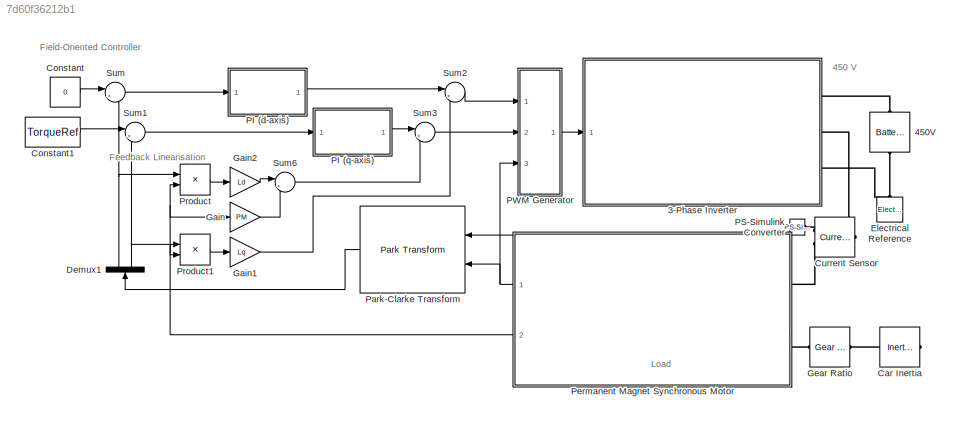
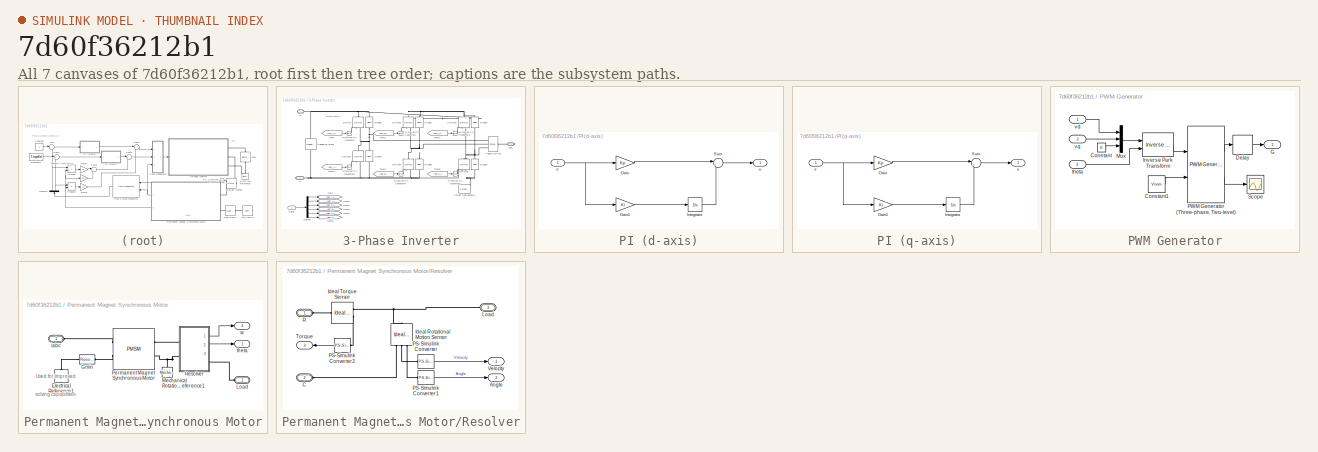
[diagram: thumbnail index - all 7 canvases of the model, root first then tree order]
MODEL slx_7d60f36212b1
KIND model
CONFIG AbsTol = auto
CONFIG EnableMultiTasking = off
CONFIG FixedStep = auto
CONFIG MaxStep = auto
CONFIG MinStep = auto
CONFIG RelTol = 1e-3
CONFIG SampleTimeConstraint = Unconstrained
CONFIG Solver = VariableStepAuto
CONFIG SolverName = VariableStepAuto
CONFIG StartTime = 0.0
CONFIG StopTime = 10.0
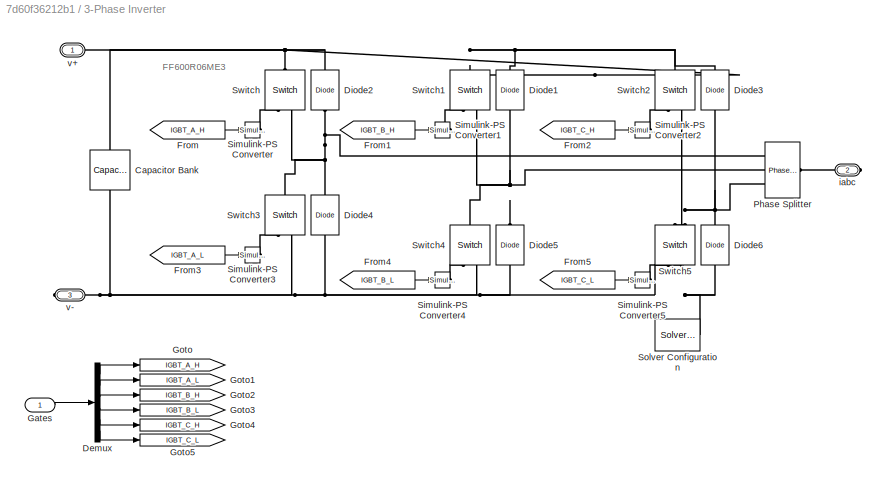
BLOCK [SubSystem] 3-Phase Inverter
  Ports = [1, 0, 0, 0, 0, 0, 3]
  RequestExecContextInheritance = off
BLOCK [Reference] 3-Phase Inverter/Capacitor Bank  REF=fl_lib/Electrical/Electrical Elements/Capacitor
  Ports = [0, 0, 0, 0, 0, 1, 1]
  SourceBlock = fl_lib/Electrical/Electrical Elements/Capacitor
  SourceProductBaseCode = SS
  SourceProductName = Simscape
  SourceType = Capacitor
BLOCK [Demux] 3-Phase Inverter/Demux
  DisplayOption = bar
  Outputs = 6
  Ports = [1, 6]
BLOCK [Reference] 3-Phase Inverter/Diode1  REF=fl_lib/Electrical/Electrical Elements/Diode
  Ports = [0, 0, 0, 0, 0, 1, 1]
  SourceBlock = fl_lib/Electrical/Electrical Elements/Diode
  SourceProductBaseCode = SS
  SourceProductName = Simscape
  SourceType = Diode
BLOCK [Reference] 3-Phase Inverter/Diode2  REF=fl_lib/Electrical/Electrical Elements/Diode
  Ports = [0, 0, 0, 0, 0, 1, 1]
  SourceBlock = fl_lib/Electrical/Electrical Elements/Diode
  SourceProductBaseCode = SS
  SourceProductName = Simscape
  SourceType = Diode
BLOCK [Reference] 3-Phase Inverter/Diode3  REF=fl_lib/Electrical/Electrical Elements/Diode
  Ports = [0, 0, 0, 0, 0, 1, 1]
  SourceBlock = fl_lib/Electrical/Electrical Elements/Diode
  SourceProductBaseCode = SS
  SourceProductName = Simscape
  SourceType = Diode
BLOCK [Reference] 3-Phase Inverter/Diode4  REF=fl_lib/Electrical/Electrical Elements/Diode
  Ports = [0, 0, 0, 0, 0, 1, 1]
  SourceBlock = fl_lib/Electrical/Electrical Elements/Diode
  SourceProductBaseCode = SS
  SourceProductName = Simscape
  SourceType = Diode
BLOCK [Reference] 3-Phase Inverter/Diode5  REF=fl_lib/Electrical/Electrical Elements/Diode
  Ports = [0, 0, 0, 0, 0, 1, 1]
  SourceBlock = fl_lib/Electrical/Electrical Elements/Diode
  SourceProductBaseCode = SS
  SourceProductName = Simscape
  SourceType = Diode
BLOCK [Reference] 3-Phase Inverter/Diode6  REF=fl_lib/Electrical/Electrical Elements/Diode
  Ports = [0, 0, 0, 0, 0, 1, 1]
  SourceBlock = fl_lib/Electrical/Electrical Elements/Diode
  SourceProductBaseCode = SS
  SourceProductName = Simscape
  SourceType = Diode
BLOCK [From] 3-Phase Inverter/From
  GotoTag = IGBT_A_H
BLOCK [From] 3-Phase Inverter/From1
  GotoTag = IGBT_B_H
BLOCK [From] 3-Phase Inverter/From2
  GotoTag = IGBT_C_H
BLOCK [From] 3-Phase Inverter/From3
  GotoTag = IGBT_A_L
BLOCK [From] 3-Phase Inverter/From4
  GotoTag = IGBT_B_L
BLOCK [From] 3-Phase Inverter/From5
  GotoTag = IGBT_C_L
BLOCK [Inport] 3-Phase Inverter/Gates
  IconDisplay = Port number
BLOCK [Goto] 3-Phase Inverter/Goto
  GotoTag = IGBT_A_H
BLOCK [Goto] 3-Phase Inverter/Goto1
  GotoTag = IGBT_A_L
BLOCK [Goto] 3-Phase Inverter/Goto2
  GotoTag = IGBT_B_H
BLOCK [Goto] 3-Phase Inverter/Goto3
  GotoTag = IGBT_B_L
BLOCK [Goto] 3-Phase Inverter/Goto4
  GotoTag = IGBT_C_H
BLOCK [Goto] 3-Phase Inverter/Goto5
  GotoTag = IGBT_C_L
BLOCK [Reference] 3-Phase Inverter/Phase Splitter  REF=ee_lib/Connectors &
References/Phase Splitter
  Ports = [0, 0, 0, 0, 0, 1, 3]
  SourceBlock = ee_lib/Connectors &\nReferences/Phase Splitter
  SourceProductBaseCode = PS
  SourceProductName = Simscape Electrical
  SourceType = Phase Splitter
BLOCK [Reference] 3-Phase Inverter/Simulink-PS Converter  REF=nesl_utility/Simulink-PS
Converter
  Ports = [1, 0, 0, 0, 0, 0, 1]
  SourceBlock = nesl_utility/Simulink-PS\nConverter
  SourceProductBaseCode = SS
  SourceProductName = Simscape
  SourceType = Simulink-PS\nConverter
BLOCK [Reference] 3-Phase Inverter/Simulink-PS Converter1  REF=nesl_utility/Simulink-PS
Converter
  Ports = [1, 0, 0, 0, 0, 0, 1]
  SourceBlock = nesl_utility/Simulink-PS\nConverter
  SourceProductBaseCode = SS
  SourceProductName = Simscape
  SourceType = Simulink-PS\nConverter
BLOCK [Reference] 3-Phase Inverter/Simulink-PS Converter2  REF=nesl_utility/Simulink-PS
Converter
  Ports = [1, 0, 0, 0, 0, 0, 1]
  SourceBlock = nesl_utility/Simulink-PS\nConverter
  SourceProductBaseCode = SS
  SourceProductName = Simscape
  SourceType = Simulink-PS\nConverter
BLOCK [Reference] 3-Phase Inverter/Simulink-PS Converter3  REF=nesl_utility/Simulink-PS
Converter
  Ports = [1, 0, 0, 0, 0, 0, 1]
  SourceBlock = nesl_utility/Simulink-PS\nConverter
  SourceProductBaseCode = SS
  SourceProductName = Simscape
  SourceType = Simulink-PS\nConverter
BLOCK [Reference] 3-Phase Inverter/Simulink-PS Converter4  REF=nesl_utility/Simulink-PS
Converter
  Ports = [1, 0, 0, 0, 0, 0, 1]
  SourceBlock = nesl_utility/Simulink-PS\nConverter
  SourceProductBaseCode = SS
  SourceProductName = Simscape
  SourceType = Simulink-PS\nConverter
BLOCK [Reference] 3-Phase Inverter/Simulink-PS Converter5  REF=nesl_utility/Simulink-PS
Converter
  Ports = [1, 0, 0, 0, 0, 0, 1]
  SourceBlock = nesl_utility/Simulink-PS\nConverter
  SourceProductBaseCode = SS
  SourceProductName = Simscape
  SourceType = Simulink-PS\nConverter
BLOCK [Reference] 3-Phase Inverter/Solver Configuration  REF=nesl_utility/Solver
Configuration
  Ports = [0, 0, 0, 0, 0, 0, 1]
  SourceBlock = nesl_utility/Solver\nConfiguration
  SourceProductBaseCode = SS
  SourceProductName = Simscape
  SourceType = Solver\nConfiguration
BLOCK [Reference] 3-Phase Inverter/Switch  REF=fl_lib/Electrical/Electrical Elements/Switch
  Ports = [0, 0, 0, 0, 0, 1, 2]
  SourceBlock = fl_lib/Electrical/Electrical Elements/Switch
  SourceProductBaseCode = SS
  SourceProductName = Simscape
  SourceType = Switch
BLOCK [Reference] 3-Phase Inverter/Switch1  REF=fl_lib/Electrical/Electrical Elements/Switch
  Ports = [0, 0, 0, 0, 0, 1, 2]
  SourceBlock = fl_lib/Electrical/Electrical Elements/Switch
  SourceProductBaseCode = SS
  SourceProductName = Simscape
  SourceType = Switch
BLOCK [Reference] 3-Phase Inverter/Switch2  REF=fl_lib/Electrical/Electrical Elements/Switch
  Ports = [0, 0, 0, 0, 0, 1, 2]
  SourceBlock = fl_lib/Electrical/Electrical Elements/Switch
  SourceProductBaseCode = SS
  SourceProductName = Simscape
  SourceType = Switch
BLOCK [Reference] 3-Phase Inverter/Switch3  REF=fl_lib/Electrical/Electrical Elements/Switch
  Ports = [0, 0, 0, 0, 0, 1, 2]
  SourceBlock = fl_lib/Electrical/Electrical Elements/Switch
  SourceProductBaseCode = SS
  SourceProductName = Simscape
  SourceType = Switch
BLOCK [Reference] 3-Phase Inverter/Switch4  REF=fl_lib/Electrical/Electrical Elements/Switch
  Ports = [0, 0, 0, 0, 0, 1, 2]
  SourceBlock = fl_lib/Electrical/Electrical Elements/Switch
  SourceProductBaseCode = SS
  SourceProductName = Simscape
  SourceType = Switch
BLOCK [Reference] 3-Phase Inverter/Switch5  REF=fl_lib/Electrical/Electrical Elements/Switch
  Ports = [0, 0, 0, 0, 0, 1, 2]
  SourceBlock = fl_lib/Electrical/Electrical Elements/Switch
  SourceProductBaseCode = SS
  SourceProductName = Simscape
  SourceType = Switch
BLOCK [PMIOPort] 3-Phase Inverter/iabc
  Port = 2
  Side = Right
  Tag = PMCPort
BLOCK [PMIOPort] 3-Phase Inverter/v+
  Side = Right
  Tag = PMCPort
BLOCK [PMIOPort] 3-Phase Inverter/v-
  Port = 3
  Side = Right
  Tag = PMCPort
BLOCK [Reference] 450V  REF=ee_lib/Sources/Battery
  Ports = [0, 0, 0, 0, 0, 1, 1]
  SourceBlock = ee_lib/Sources/Battery
  SourceProductBaseCode = PS
  SourceProductName = Simscape Electrical
  SourceType = Battery
BLOCK [Reference] Car Inertia  REF=fl_lib/Mechanical/Rotational Elements/Inertia
  Ports = [0, 0, 0, 0, 0, 1]
  SourceBlock = fl_lib/Mechanical/Rotational Elements/Inertia
  SourceProductBaseCode = SS
  SourceProductName = Simscape
  SourceType = Inertia
BLOCK [Constant] Constant
  Value = 0
BLOCK [Constant] Constant1
  Value = TorqueRef
BLOCK [Reference] Current Sensor  REF=ee_lib/Sensors &
Transducers/Current Sensor
(Three-Phase)
  Ports = [0, 0, 0, 0, 0, 1, 2]
  SourceBlock = ee_lib/Sensors &\nTransducers/Current Sensor\n(Three-Phase)
  SourceProductBaseCode = PS
  SourceProductName = Simscape Electrical
  SourceType = Current Sensor\n(Three-Phase)
BLOCK [Demux] Demux1
  DisplayOption = bar
  Outputs = 2
  Ports = [1, 2]
BLOCK [Reference] Electrical Reference  REF=fl_lib/Electrical/Electrical Elements/Electrical Reference
  Ports = [0, 0, 0, 0, 0, 1]
  SourceBlock = fl_lib/Electrical/Electrical Elements/Electrical Reference
  SourceProductName = Foundation Library
  SourceType = Electrical Reference
BLOCK [Gain] Gain
  Gain = PM
  OutDataTypeStr = Inherit: Inherit via internal rule
  ParamDataTypeStr = Inherit: Inherit via internal rule
  SaturateOnIntegerOverflow = off
BLOCK [Gain] Gain1
  Gain = Lq
  OutDataTypeStr = Inherit: Inherit via internal rule
  ParamDataTypeStr = Inherit: Inherit via internal rule
  SaturateOnIntegerOverflow = off
BLOCK [Gain] Gain2
  Gain = Ld
  OutDataTypeStr = Inherit: Inherit via internal rule
  ParamDataTypeStr = Inherit: Inherit via internal rule
  SaturateOnIntegerOverflow = off
BLOCK [Reference] Gear Ratio  REF=fl_lib/Mechanical/Mechanisms/Gear Box
  Ports = [0, 0, 0, 0, 0, 1, 1]
  SourceBlock = fl_lib/Mechanical/Mechanisms/Gear Box
  SourceProductBaseCode = SS
  SourceProductName = Simscape
  SourceType = Gear Box
BLOCK [SubSystem] PI (d-axis)
  Ports = [1, 1]
  RequestExecContextInheritance = off
BLOCK [Gain] PI (d-axis)/Gain
  Gain = Kp
  OutDataTypeStr = Inherit: Inherit via internal rule
  ParamDataTypeStr = Inherit: Inherit via internal rule
  SaturateOnIntegerOverflow = off
BLOCK [Gain] PI (d-axis)/Gain1
  Gain = Ki
  OutDataTypeStr = Inherit: Inherit via internal rule
  ParamDataTypeStr = Inherit: Inherit via internal rule
  SaturateOnIntegerOverflow = off
BLOCK [Integrator] PI (d-axis)/Integrator
  Ports = [1, 1]
BLOCK [Sum] PI (d-axis)/Sum
  IconShape = round
  InputSameDT = off
  Inputs = |++
  OutDataTypeStr = Inherit: Inherit via internal rule
  Ports = [2, 1]
  SaturateOnIntegerOverflow = off
BLOCK [Inport] PI (d-axis)/e
  IconDisplay = Port number
  SampleTime = Ts
BLOCK [Outport] PI (d-axis)/u
  IconDisplay = Port number
BLOCK [SubSystem] PI (q-axis)
  Ports = [1, 1]
  RequestExecContextInheritance = off
BLOCK [Gain] PI (q-axis)/Gain
  Gain = Kp
  OutDataTypeStr = Inherit: Inherit via internal rule
  ParamDataTypeStr = Inherit: Inherit via internal rule
  SaturateOnIntegerOverflow = off
BLOCK [Gain] PI (q-axis)/Gain1
  Gain = Ki
  OutDataTypeStr = Inherit: Inherit via internal rule
  ParamDataTypeStr = Inherit: Inherit via internal rule
  SaturateOnIntegerOverflow = off
BLOCK [Integrator] PI (q-axis)/Integrator
  Ports = [1, 1]
BLOCK [Sum] PI (q-axis)/Sum
  IconShape = round
  InputSameDT = off
  Inputs = |++
  OutDataTypeStr = Inherit: Inherit via internal rule
  Ports = [2, 1]
  SaturateOnIntegerOverflow = off
BLOCK [Inport] PI (q-axis)/e
  IconDisplay = Port number
  SampleTime = Ts
BLOCK [Outport] PI (q-axis)/u
  IconDisplay = Port number
BLOCK [Reference] PS-Simulink Converter  REF=nesl_utility/PS-Simulink
Converter
  Ports = [0, 1, 0, 0, 0, 1]
  SourceBlock = nesl_utility/PS-Simulink\nConverter
  SourceProductBaseCode = SS
  SourceProductName = Simscape
  SourceType = PS-Simulink\nConverter
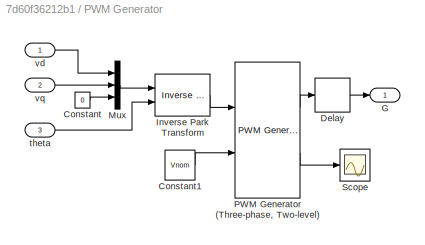
BLOCK [SubSystem] PWM Generator
  Ports = [3, 1]
  RequestExecContextInheritance = off
BLOCK [Constant] PWM Generator/Constant
  SampleTime = Tsc
  Value = 0
BLOCK [Constant] PWM Generator/Constant1
  Value = Vnom
BLOCK [Delay] PWM Generator/Delay
  DelayLength = 1
  InputPortMap = u0
  Ports = [1, 1]
BLOCK [Outport] PWM Generator/G
  IconDisplay = Port number
BLOCK [Reference] PWM Generator/Inverse Park Transform  REF=eeTransforms/Inverse
Park Transform
  Ports = [2, 1]
  SourceBlock = eeTransforms/Inverse\nPark Transform
  SourceProductBaseCode = PS
  SourceProductName = Simscape Electrical
  SourceType = Inverse Park Transform
BLOCK [Mux] PWM Generator/Mux
  DisplayOption = bar
  Inputs = 3
  Ports = [3, 1]
BLOCK [Reference] PWM Generator/PWM Generator (Three-phase, Two-level)  REF=eePwmGeneratorTwoLevel/PWM Generator
(Three-phase, Two-level)
  Ports = [2, 2]
  SourceBlock = eePwmGeneratorTwoLevel/PWM Generator\n(Three-phase, Two-level)
  SourceProductBaseCode = PS
  SourceProductName = Simscape Electrical
  SourceType = PWM Generator (three-phase, two-level)
BLOCK [Scope] PWM Generator/Scope
  Floating = off
  NumInputPorts = 1
  Ports = [1]
  ScopeSpecificationString = Simulink.scopes.TimeScopeBlockCfg('CurrentConfiguration', extmgr.ConfigurationSet(extmgr.Configuration('Core','General UI',true),extmgr.Configuration('Core','Source UI',true),extmgr.Configuration('Sources','WiredSimulink',true,'DataLoggingVariableName','ScopeData1'),extmgr.Configuration('Visuals','Time Domain',true),extmgr.Configuration('Tools','Plot Navigation',true),extmgr.Configuration('Tools',...<+40ch>
BLOCK [Inport] PWM Generator/theta
  IconDisplay = Port number
  Port = 3
BLOCK [Inport] PWM Generator/vd
  IconDisplay = Port number
BLOCK [Inport] PWM Generator/vq
  IconDisplay = Port number
  Port = 2
BLOCK [Reference] Park-Clarke Transform  REF=eeTransforms/Park Transform
  Ports = [2, 1]
  SourceBlock = eeTransforms/Park Transform
  SourceProductBaseCode = PS
  SourceProductName = Simscape Electrical
  SourceType = Park Transform
BLOCK [SubSystem] Permanent Magnet Synchronous Motor
  Ports = [0, 2, 0, 0, 0, 2]
  RequestExecContextInheritance = off
BLOCK [Reference] Permanent Magnet Synchronous Motor/Electrical Reference1  REF=fl_lib/Electrical/Electrical Elements/Electrical Reference
  Ports = [0, 0, 0, 0, 0, 1]
  SourceBlock = fl_lib/Electrical/Electrical Elements/Electrical Reference
  SourceProductBaseCode = SS
  SourceProductName = Simscape
  SourceType = Electrical Reference
BLOCK [Reference] Permanent Magnet Synchronous Motor/Gmin  REF=fl_lib/Electrical/Electrical Elements/Resistor
  Ports = [0, 0, 0, 0, 0, 1, 1]
  SourceBlock = fl_lib/Electrical/Electrical Elements/Resistor
  SourceProductBaseCode = SS
  SourceProductName = Simscape
  SourceType = Resistor
BLOCK [PMIOPort] Permanent Magnet Synchronous Motor/Load
  Port = 2
  Side = Left
BLOCK [Reference] Permanent Magnet Synchronous Motor/Mechanical Rotational Reference1  REF=fl_lib/Mechanical/Rotational Elements/Mechanical
Rotational Reference
  Ports = [0, 0, 0, 0, 0, 1]
  SourceBlock = fl_lib/Mechanical/Rotational Elements/Mechanical\nRotational Reference
  SourceProductBaseCode = SS
  SourceProductName = Simscape
  SourceType = Mechanical\nRotational Reference
BLOCK [Reference] Permanent Magnet Synchronous Motor/Permanent Magnet Synchronous Motor  REF=ee_lib/Electromechanical/Permanent Magnet/PMSM
  Ports = [0, 0, 0, 0, 0, 2, 2]
  SourceBlock = ee_lib/Electromechanical/Permanent Magnet/PMSM
  SourceProductBaseCode = PS
  SourceProductName = Simscape Electrical
  SourceType = PMSM
BLOCK [SubSystem] Permanent Magnet Synchronous Motor/Resolver
  Ports = [0, 3, 0, 0, 0, 2, 1]
  RequestExecContextInheritance = off
BLOCK [Outport] Permanent Magnet Synchronous Motor/Resolver/Angle
  IconDisplay = Port number
  Port = 2
BLOCK [PMIOPort] Permanent Magnet Synchronous Motor/Resolver/C
  Port = 2
  Side = Left
BLOCK [Reference] Permanent Magnet Synchronous Motor/Resolver/Ideal Rotational Motion Sensor  REF=fl_lib/Mechanical/Mechanical Sensors/Ideal Rotational
Motion Sensor
  Ports = [0, 0, 0, 0, 0, 1, 3]
  SourceBlock = fl_lib/Mechanical/Mechanical Sensors/Ideal Rotational\nMotion Sensor
  SourceProductName = Foundation Library
  SourceType = Ideal Rotational\nMotion Sensor
BLOCK [Reference] Permanent Magnet Synchronous Motor/Resolver/Ideal Torque Sensor  REF=fl_lib/Mechanical/Mechanical Sensors/Ideal Torque Sensor
  Ports = [0, 0, 0, 0, 0, 1, 2]
  SourceBlock = fl_lib/Mechanical/Mechanical Sensors/Ideal Torque Sensor
  SourceProductName = Foundation Library
  SourceType = Ideal Torque Sensor
BLOCK [PMIOPort] Permanent Magnet Synchronous Motor/Resolver/Load
  Port = 3
  Side = Right
BLOCK [Reference] Permanent Magnet Synchronous Motor/Resolver/PS-Simulink Converter  REF=nesl_utility/PS-Simulink
Converter
  Ports = [0, 1, 0, 0, 0, 1]
  SourceBlock = nesl_utility/PS-Simulink\nConverter
  SourceProductBaseCode = SS
  SourceProductName = Simscape
  SourceType = PS-Simulink\nConverter
BLOCK [Reference] Permanent Magnet Synchronous Motor/Resolver/PS-Simulink Converter1  REF=nesl_utility/PS-Simulink
Converter
  Ports = [0, 1, 0, 0, 0, 1]
  SourceBlock = nesl_utility/PS-Simulink\nConverter
  SourceProductBaseCode = SS
  SourceProductName = Simscape
  SourceType = PS-Simulink\nConverter
BLOCK [Reference] Permanent Magnet Synchronous Motor/Resolver/PS-Simulink Converter2  REF=nesl_utility/PS-Simulink
Converter
  Ports = [0, 1, 0, 0, 0, 1]
  SourceBlock = nesl_utility/PS-Simulink\nConverter
  SourceProductBaseCode = SS
  SourceProductName = Simscape
  SourceType = PS-Simulink\nConverter
BLOCK [PMIOPort] Permanent Magnet Synchronous Motor/Resolver/R
  Side = Left
BLOCK [Outport] Permanent Magnet Synchronous Motor/Resolver/Torque
  IconDisplay = Port number
  Port = 3
BLOCK [Outport] Permanent Magnet Synchronous Motor/Resolver/Velocity
  IconDisplay = Port number
BLOCK [PMIOPort] Permanent Magnet Synchronous Motor/iabc
  Side = Left
BLOCK [Outport] Permanent Magnet Synchronous Motor/theta
  IconDisplay = Port number
BLOCK [Outport] Permanent Magnet Synchronous Motor/w
  IconDisplay = Port number
  Port = 2
BLOCK [Product] Product
  InputSameDT = off
  OutDataTypeStr = Inherit: Inherit via internal rule
  Ports = [2, 1]
  RndMeth = Floor
  SaturateOnIntegerOverflow = off
BLOCK [Product] Product1
  InputSameDT = off
  OutDataTypeStr = Inherit: Inherit via internal rule
  Ports = [2, 1]
  RndMeth = Floor
  SaturateOnIntegerOverflow = off
BLOCK [Sum] Sum
  IconShape = round
  InputSameDT = off
  Inputs = |+-
  OutDataTypeStr = Inherit: Inherit via internal rule
  Ports = [2, 1]
  SaturateOnIntegerOverflow = off
BLOCK [Sum] Sum1
  IconShape = round
  InputSameDT = off
  Inputs = |+-
  OutDataTypeStr = Inherit: Inherit via internal rule
  Ports = [2, 1]
  SaturateOnIntegerOverflow = off
BLOCK [Sum] Sum2
  IconShape = round
  InputSameDT = off
  Inputs = |+-
  OutDataTypeStr = Inherit: Inherit via internal rule
  Ports = [2, 1]
  SaturateOnIntegerOverflow = off
BLOCK [Sum] Sum3
  IconShape = round
  InputSameDT = off
  Inputs = |++
  OutDataTypeStr = Inherit: Inherit via internal rule
  Ports = [2, 1]
  SaturateOnIntegerOverflow = off
BLOCK [Sum] Sum6
  IconShape = round
  InputSameDT = off
  Inputs = |++
  OutDataTypeStr = Inherit: Inherit via internal rule
  Ports = [2, 1]
  SaturateOnIntegerOverflow = off
ANNOTATION (root): 450 V
ANNOTATION (root): Feedback Linearisation
ANNOTATION (root): Field-Oriented Controller
ANNOTATION (root): Load
ANNOTATION 3-Phase Inverter: FF600R06ME3
ANNOTATION Permanent Magnet Synchronous Motor: Used for improved solving capabilities
LINE 3-Phase Inverter/Demux:1 -> 3-Phase Inverter/Goto:1
LINE 3-Phase Inverter/Demux:2 -> 3-Phase Inverter/Goto1:1
LINE 3-Phase Inverter/Demux:3 -> 3-Phase Inverter/Goto2:1
LINE 3-Phase Inverter/Demux:4 -> 3-Phase Inverter/Goto3:1
LINE 3-Phase Inverter/Demux:5 -> 3-Phase Inverter/Goto4:1
LINE 3-Phase Inverter/Demux:6 -> 3-Phase Inverter/Goto5:1
LINE 3-Phase Inverter/From1:1 -> 3-Phase Inverter/Simulink-PS Converter1:1
LINE 3-Phase Inverter/From2:1 -> 3-Phase Inverter/Simulink-PS Converter2:1
LINE 3-Phase Inverter/From3:1 -> 3-Phase Inverter/Simulink-PS Converter3:1
LINE 3-Phase Inverter/From4:1 -> 3-Phase Inverter/Simulink-PS Converter4:1
LINE 3-Phase Inverter/From5:1 -> 3-Phase Inverter/Simulink-PS Converter5:1
LINE 3-Phase Inverter/From:1 -> 3-Phase Inverter/Simulink-PS Converter:1
LINE 3-Phase Inverter/Gates:1 -> 3-Phase Inverter/Demux:1
LINE Constant1:1 -> Sum1:1
LINE Constant:1 -> Sum:1
NET Demux1:1 -> Product:1, Sum:2
NET Demux1:2 -> Product1:1, Sum1:2
LINE Gain1:1 -> Sum2:2
LINE Gain2:1 -> Sum6:1
LINE Gain:1 -> Sum6:2
LINE PI (d-axis)/Gain1:1 -> PI (d-axis)/Integrator:1
LINE PI (d-axis)/Gain:1 -> PI (d-axis)/Sum:1
LINE PI (d-axis)/Integrator:1 -> PI (d-axis)/Sum:2
LINE PI (d-axis)/Sum:1 -> PI (d-axis)/u:1
NET PI (d-axis)/e:1 -> PI (d-axis)/Gain1:1, PI (d-axis)/Gain:1
LINE PI (d-axis):1 -> Sum2:1
LINE PI (q-axis)/Gain1:1 -> PI (q-axis)/Integrator:1
LINE PI (q-axis)/Gain:1 -> PI (q-axis)/Sum:1
LINE PI (q-axis)/Integrator:1 -> PI (q-axis)/Sum:2
LINE PI (q-axis)/Sum:1 -> PI (q-axis)/u:1
NET PI (q-axis)/e:1 -> PI (q-axis)/Gain1:1, PI (q-axis)/Gain:1
LINE PI (q-axis):1 -> Sum3:1
LINE PS-Simulink Converter:1 -> Park-Clarke Transform:1
LINE PWM Generator/Constant1:1 -> PWM Generator/PWM Generator (Three-phase, Two-level):2
LINE PWM Generator/Constant:1 -> PWM Generator/Mux:3
LINE PWM Generator/Delay:1 -> PWM Generator/G:1
LINE PWM Generator/Inverse Park Transform:1 -> PWM Generator/PWM Generator (Three-phase, Two-level):1
LINE PWM Generator/Mux:1 -> PWM Generator/Inverse Park Transform:1
LINE PWM Generator/PWM Generator (Three-phase, Two-level):1 -> PWM Generator/Delay:1
LINE PWM Generator/PWM Generator (Three-phase, Two-level):2 -> PWM Generator/Scope:1
LINE PWM Generator/theta:1 -> PWM Generator/Inverse Park Transform:2
LINE PWM Generator/vd:1 -> PWM Generator/Mux:1
LINE PWM Generator/vq:1 -> PWM Generator/Mux:2
LINE PWM Generator:1 -> 3-Phase Inverter:1
LINE Park-Clarke Transform:1 -> Demux1:1
LINE Permanent Magnet Synchronous Motor/Resolver/PS-Simulink Converter1:1 -> Permanent Magnet Synchronous Motor/Resolver/Angle:1
LINE Permanent Magnet Synchronous Motor/Resolver/PS-Simulink Converter2:1 -> Permanent Magnet Synchronous Motor/Resolver/Torque:1
LINE Permanent Magnet Synchronous Motor/Resolver/PS-Simulink Converter:1 -> Permanent Magnet Synchronous Motor/Resolver/Velocity:1
LINE Permanent Magnet Synchronous Motor/Resolver:1 -> Permanent Magnet Synchronous Motor/w:1
LINE Permanent Magnet Synchronous Motor/Resolver:2 -> Permanent Magnet Synchronous Motor/theta:1
NET Permanent Magnet Synchronous Motor:1 -> PWM Generator:3, Park-Clarke Transform:2
NET Permanent Magnet Synchronous Motor:2 -> Gain:1, Product1:2, Product:2
LINE Product1:1 -> Gain1:1
LINE Product:1 -> Gain2:1
LINE Sum1:1 -> PI (q-axis):1
LINE Sum2:1 -> PWM Generator:1
LINE Sum3:1 -> PWM Generator:2
LINE Sum6:1 -> Sum3:2
LINE Sum:1 -> PI (d-axis):1
PNET net1: 3-Phase Inverter/Capacitor Bank:LConn1 -- 3-Phase Inverter/Diode1:RConn1 -- 3-Phase Inverter/Diode2:RConn1 -- 3-Phase Inverter/Diode3:RConn1 -- 3-Phase Inverter/Switch1:LConn1 -- 3-Phase Inverter/Switch2:LConn1 -- 3-Phase Inverter/Switch:LConn1 -- 3-Phase Inverter/v+:RConn1
PNET net2: 3-Phase Inverter/Capacitor Bank:RConn1 -- 3-Phase Inverter/Diode4:LConn1 -- 3-Phase Inverter/Diode5:LConn1 -- 3-Phase Inverter/Diode6:LConn1 -- 3-Phase Inverter/Solver Configuration:RConn1 -- 3-Phase Inverter/Switch3:RConn2 -- 3-Phase Inverter/Switch4:RConn2 -- 3-Phase Inverter/Switch5:RConn2 -- 3-Phase Inverter/v-:RConn1
PNET net3: 3-Phase Inverter/Diode1:LConn1 -- 3-Phase Inverter/Diode5:RConn1 -- 3-Phase Inverter/Phase Splitter:RConn2 -- 3-Phase Inverter/Switch1:RConn2 -- 3-Phase Inverter/Switch4:LConn1
PNET net4: 3-Phase Inverter/Diode2:LConn1 -- 3-Phase Inverter/Diode4:RConn1 -- 3-Phase Inverter/Phase Splitter:RConn1 -- 3-Phase Inverter/Switch3:LConn1 -- 3-Phase Inverter/Switch:RConn2
PNET net5: 3-Phase Inverter/Diode3:LConn1 -- 3-Phase Inverter/Diode6:RConn1 -- 3-Phase Inverter/Phase Splitter:RConn3 -- 3-Phase Inverter/Switch2:RConn2 -- 3-Phase Inverter/Switch5:LConn1
PLINE 3-Phase Inverter/Phase Splitter:LConn1 -- 3-Phase Inverter/iabc:RConn1
PLINE 3-Phase Inverter/Simulink-PS Converter1:RConn1 -- 3-Phase Inverter/Switch1:RConn1
PLINE 3-Phase Inverter/Simulink-PS Converter2:RConn1 -- 3-Phase Inverter/Switch2:RConn1
PLINE 3-Phase Inverter/Simulink-PS Converter3:RConn1 -- 3-Phase Inverter/Switch3:RConn1
PLINE 3-Phase Inverter/Simulink-PS Converter4:RConn1 -- 3-Phase Inverter/Switch4:RConn1
PLINE 3-Phase Inverter/Simulink-PS Converter5:RConn1 -- 3-Phase Inverter/Switch5:RConn1
PLINE 3-Phase Inverter/Simulink-PS Converter:RConn1 -- 3-Phase Inverter/Switch:RConn1
PLINE 3-Phase Inverter:RConn1 -- 450V:LConn1
PLINE 3-Phase Inverter:RConn2 -- Current Sensor:LConn1
PNET net6: 3-Phase Inverter:RConn3 -- 450V:RConn1 -- Electrical Reference:LConn1
PLINE Car Inertia:LConn1 -- Gear Ratio:RConn1
PLINE Current Sensor:RConn1 -- PS-Simulink Converter:LConn1
PLINE Current Sensor:RConn2 -- Permanent Magnet Synchronous Motor:LConn1
PLINE Gear Ratio:LConn1 -- Permanent Magnet Synchronous Motor:LConn2
PLINE Permanent Magnet Synchronous Motor/Electrical Reference1:LConn1 -- Permanent Magnet Synchronous Motor/Gmin:LConn1
PLINE Permanent Magnet Synchronous Motor/Gmin:RConn1 -- Permanent Magnet Synchronous Motor/Permanent Magnet Synchronous Motor:LConn2
PLINE Permanent Magnet Synchronous Motor/Load:RConn1 -- Permanent Magnet Synchronous Motor/Resolver:RConn1
PNET net7: Permanent Magnet Synchronous Motor/Mechanical Rotational Reference1:LConn1 -- Permanent Magnet Synchronous Motor/Permanent Magnet Synchronous Motor:RConn2 -- Permanent Magnet Synchronous Motor/Resolver:LConn2
PLINE Permanent Magnet Synchronous Motor/Permanent Magnet Synchronous Motor:LConn1 -- Permanent Magnet Synchronous Motor/iabc:RConn1
PLINE Permanent Magnet Synchronous Motor/Permanent Magnet Synchronous Motor:RConn1 -- Permanent Magnet Synchronous Motor/Resolver:LConn1
PLINE Permanent Magnet Synchronous Motor/Resolver/C:RConn1 -- Permanent Magnet Synchronous Motor/Resolver/Ideal Rotational Motion Sensor:RConn1
PNET net8: Permanent Magnet Synchronous Motor/Resolver/Ideal Rotational Motion Sensor:LConn1 -- Permanent Magnet Synchronous Motor/Resolver/Ideal Torque Sensor:RConn1 -- Permanent Magnet Synchronous Motor/Resolver/Load:RConn1
PLINE Permanent Magnet Synchronous Motor/Resolver/Ideal Rotational Motion Sensor:RConn2 -- Permanent Magnet Synchronous Motor/Resolver/PS-Simulink Converter:LConn1
PLINE Permanent Magnet Synchronous Motor/Resolver/Ideal Rotational Motion Sensor:RConn3 -- Permanent Magnet Synchronous Motor/Resolver/PS-Simulink Converter1:LConn1
PLINE Permanent Magnet Synchronous Motor/Resolver/Ideal Torque Sensor:LConn1 -- Permanent Magnet Synchronous Motor/Resolver/R:RConn1
PLINE Permanent Magnet Synchronous Motor/Resolver/Ideal Torque Sensor:RConn2 -- Permanent Magnet Synchronous Motor/Resolver/PS-Simulink Converter2:LConn1
note: NET lines group one-source signal fan-out (src -> all destinations, sorted); 1:1 wires keep LINE; PNET lines group multi-terminal physical nets as a canonical sorted terminal list (undirected conserving connections); 2-terminal nets keep the pairwise PLINE form
